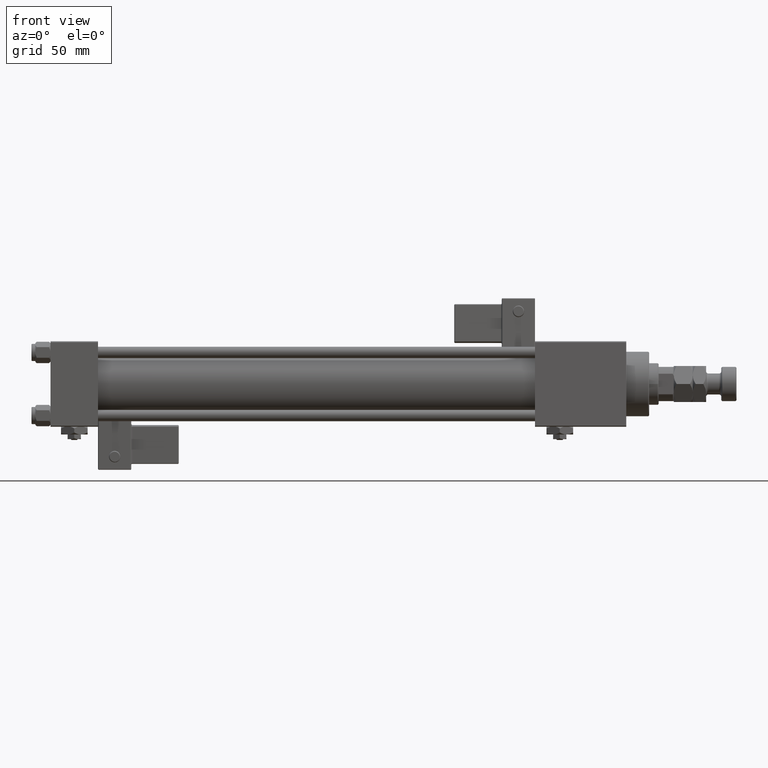
[diagram: clean part render]
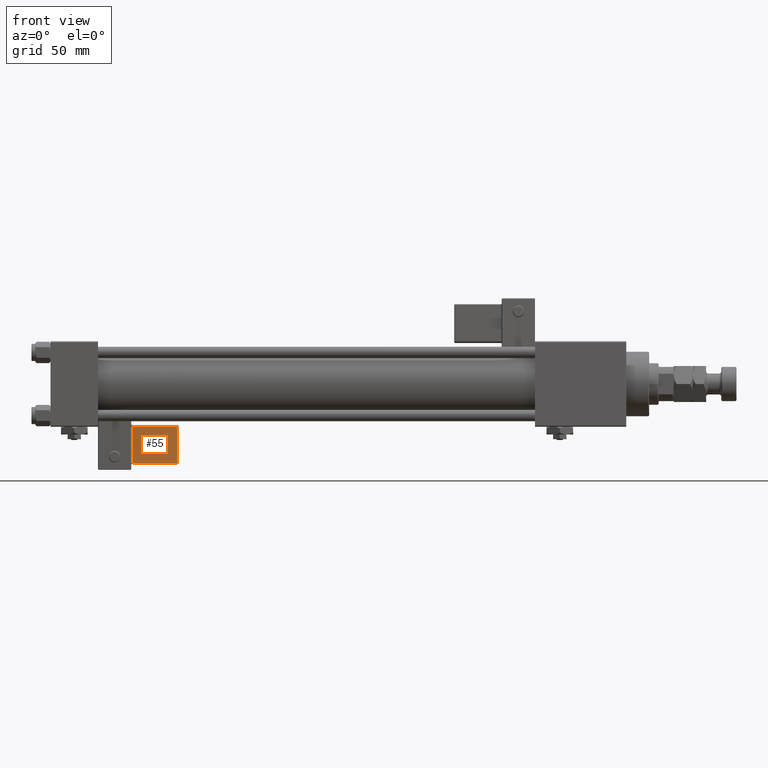
[diagram: same view with one face highlighted and labeled with its STEP entity id]
A machine part, front view. The second image highlights one B-rep face of the part: STEP entity #55.
In plain terms, the highlighted planar face has unit normal (0, 0.9994, 0.0353).
Its self-contained STEP definition (entity closure, byte-faithful):
#55 = ADVANCED_FACE ( 'NONE', ( #50170 ), #45901, .F. ) ;
#3677 = CARTESIAN_POINT ( 'NONE',  ( 33.75000000000000000, -30.25000000000000000, 21.50000000000000000 ) ) ;
#4181 = CARTESIAN_POINT ( 'NONE',  ( 33.24999999999999289, -30.25000000000000000, 21.50000000000000000 ) ) ;
#4637 = LINE ( 'NONE', #39654, #29612 ) ;
#5355 = CARTESIAN_POINT ( 'NONE',  ( 33.75000000000000000, -30.25000000000000000, 2.500000000000005773 ) ) ;
#7766 = ORIENTED_EDGE ( 'NONE', *, *, #11286, .T. ) ;
#7883 = AXIS2_PLACEMENT_3D ( 'NONE', #20029, #50447, #37931 ) ;
#8262 = ORIENTED_EDGE ( 'NONE', *, *, #28146, .T. ) ;
#9207 = DIRECTION ( 'NONE',  ( -1.734723475976807341E-16, -0.000000000000000000, 1.000000000000000000 ) ) ;
#10481 = DIRECTION ( 'NONE',  ( 1.000000000000000000, -0.000000000000000000, 1.334402673828313339E-16 ) ) ;
#10888 = DIRECTION ( 'NONE',  ( 1.334402673828313339E-16, 0.000000000000000000, -1.000000000000000000 ) ) ;
#11286 = EDGE_CURVE ( 'NONE', #18838, #32507, #40377, .T. ) ;
#15644 = VERTEX_POINT ( 'NONE', #4181 ) ;
#15747 = CARTESIAN_POINT ( 'NONE',  ( 9.250000000000005329, -30.25000000000000000, 2.000000000000001776 ) ) ;
#17093 = VECTOR ( 'NONE', #10888, 1000.000000000000000 ) ;
#17654 = DIRECTION ( 'NONE',  ( -1.000000000000000000, 0.000000000000000000, -1.334402673828313339E-16 ) ) ;
#18838 = VERTEX_POINT ( 'NONE', #54218 ) ;
#19664 = VERTEX_POINT ( 'NONE', #38957 ) ;
#20029 = CARTESIAN_POINT ( 'NONE',  ( 33.75000000000000000, -30.25000000000000000, 22.00000000000000355 ) ) ;
#23612 = EDGE_LOOP ( 'NONE', ( #8262, #7766, #52521, #37365 ) ) ;
#28146 = EDGE_CURVE ( 'NONE', #19664, #18838, #28554, .T. ) ;
#28554 = LINE ( 'NONE', #15747, #17093 ) ;
#29612 = VECTOR ( 'NONE', #9207, 1000.000000000000000 ) ;
#32507 = VERTEX_POINT ( 'NONE', #44188 ) ;
#36181 = VECTOR ( 'NONE', #10481, 1000.000000000000000 ) ;
#37365 = ORIENTED_EDGE ( 'NONE', *, *, #54874, .T. ) ;
#37931 = DIRECTION ( 'NONE',  ( 0.000000000000000000, -0.000000000000000000, 1.000000000000000000 ) ) ;
#38957 = CARTESIAN_POINT ( 'NONE',  ( 9.250000000000001776, -30.25000000000000000, 21.50000000000000000 ) ) ;
#38977 = LINE ( 'NONE', #3677, #50862 ) ;
#39654 = CARTESIAN_POINT ( 'NONE',  ( 33.24999999999999289, -30.25000000000000000, 22.00000000000000355 ) ) ;
#40377 = LINE ( 'NONE', #5355, #36181 ) ;
#44188 = CARTESIAN_POINT ( 'NONE',  ( 33.24999999999999289, -30.25000000000000000, 2.500000000000006661 ) ) ;
#45901 = PLANE ( 'NONE',  #7883 ) ;
#50170 = FACE_OUTER_BOUND ( 'NONE', #23612, .T. ) ;
#50447 = DIRECTION ( 'NONE',  ( -0.000000000000000000, 1.000000000000000000, 0.000000000000000000 ) ) ;
#50755 = EDGE_CURVE ( 'NONE', #32507, #15644, #4637, .T. ) ;
#50862 = VECTOR ( 'NONE', #17654, 1000.000000000000000 ) ;
#52521 = ORIENTED_EDGE ( 'NONE', *, *, #50755, .T. ) ;
#54218 = CARTESIAN_POINT ( 'NONE',  ( 9.250000000000005329, -30.25000000000000000, 2.500000000000003109 ) ) ;
#54874 = EDGE_CURVE ( 'NONE', #15644, #19664, #38977, .T. ) ;